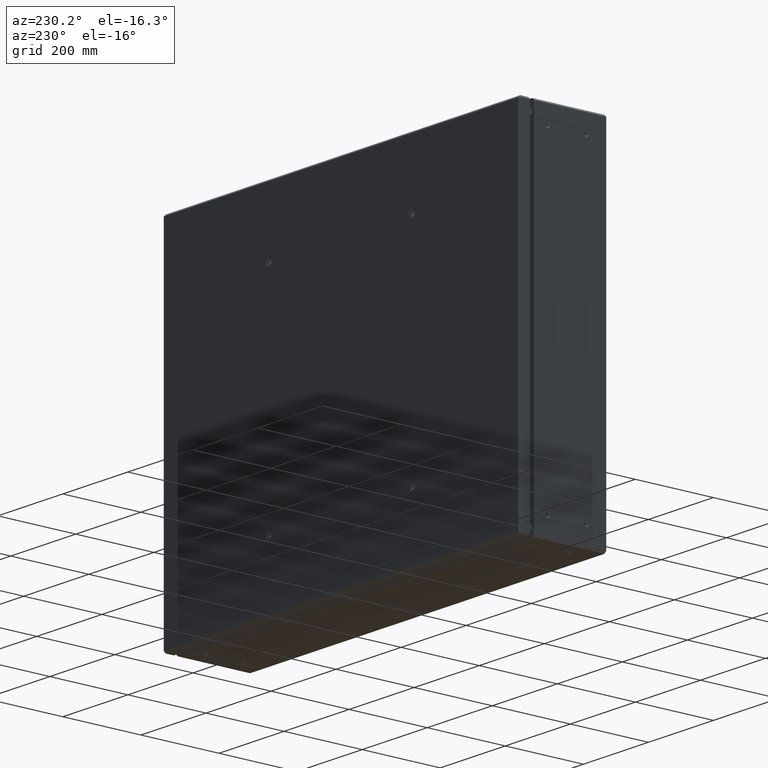
[diagram: clean part render]
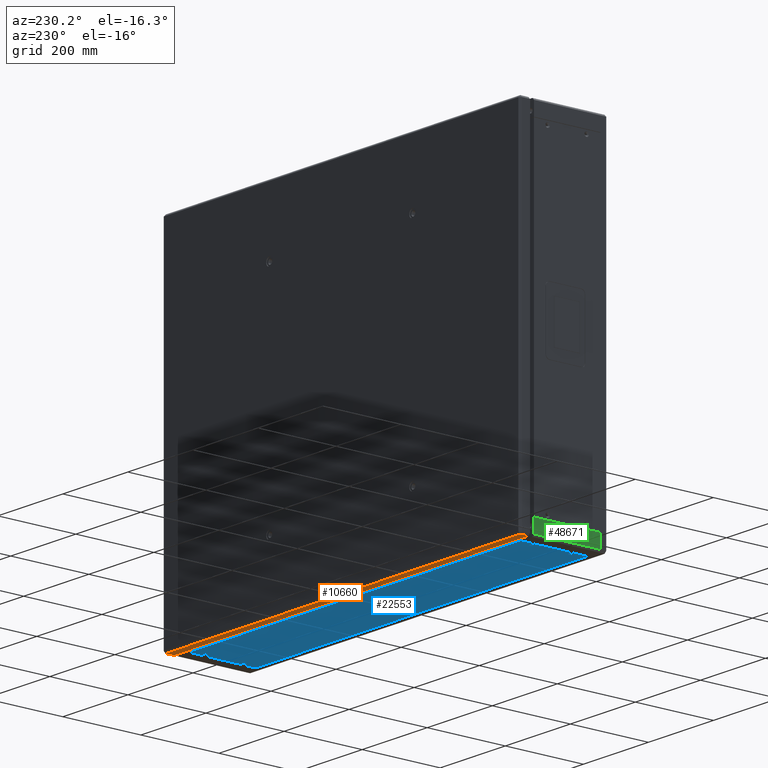
[diagram: same view with three faces highlighted in distinct colors, each labeled with its STEP entity id]
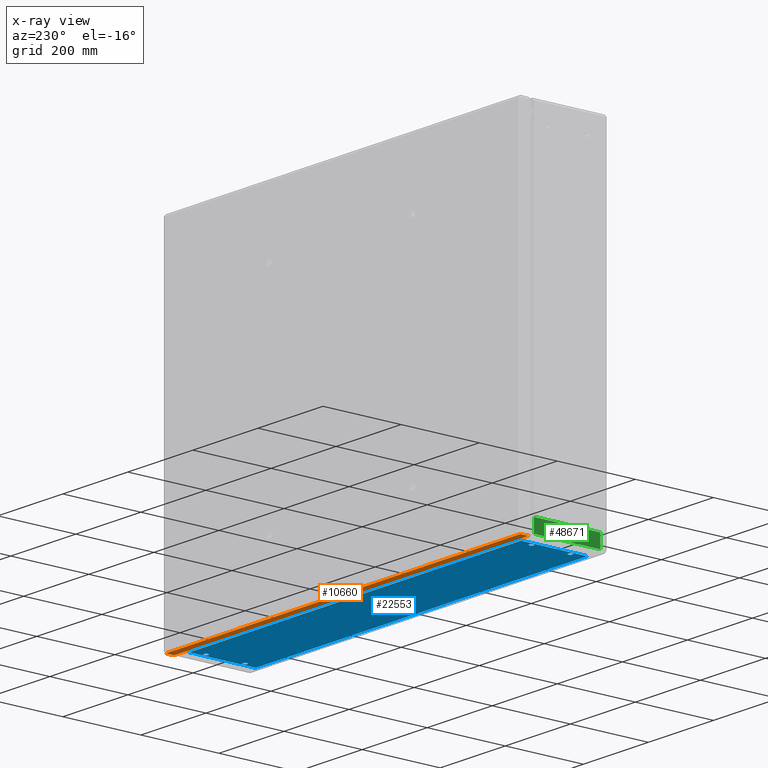
[diagram: x-ray of the same camera — body ghosted, the three highlighted faces saturated]
A machine part, auxiliary view with three faces highlighted in distinct colors.
The next image is the same camera in x-ray (body ghosted, the three faces saturated) — at least one of them is partly hidden behind the body in this view.
Their STEP definitions:

[orange] entity #10660 — the highlighted planar face has unit normal (0, 0, 1).
#851 = DIRECTION ( 'NONE',  ( 0.000000000000000000, 0.000000000000000000, 1.000000000000000000 ) ) ;
#909 = ORIENTED_EDGE ( 'NONE', *, *, #20365, .F. ) ;
#3034 = VERTEX_POINT ( 'NONE', #41634 ) ;
#4432 = DIRECTION ( 'NONE',  ( -1.000000000000000000, -0.000000000000000000, 0.000000000000000000 ) ) ;
#5817 = LINE ( 'NONE', #44222, #45188 ) ;
#6746 = DIRECTION ( 'NONE',  ( 1.000000000000000000, 0.000000000000000000, 0.000000000000000000 ) ) ;
#9162 = DIRECTION ( 'NONE',  ( -0.000000000000000000, -1.000000000000000000, 0.000000000000000000 ) ) ;
#10660 = ADVANCED_FACE ( 'NONE', ( #35410 ), #20057, .F. ) ;
#13269 = CARTESIAN_POINT ( 'NONE',  ( 386.6304755906584205, 280.9650746403643780, 399.4942352924385318 ) ) ;
#16322 = CARTESIAN_POINT ( 'NONE',  ( -703.3695244093422616, 280.9650746403643780, 399.4942352924385318 ) ) ;
#16780 = VECTOR ( 'NONE', #6746, 1000.000000000000000 ) ;
#17829 = AXIS2_PLACEMENT_3D ( 'NONE', #23639, #851, #40273 ) ;
#20057 = PLANE ( 'NONE',  #17829 ) ;
#20365 = EDGE_CURVE ( 'NONE', #21001, #40558, #21228, .T. ) ;
#21001 = VERTEX_POINT ( 'NONE', #16322 ) ;
#21228 = LINE ( 'NONE', #44276, #44436 ) ;
#22286 = ORIENTED_EDGE ( 'NONE', *, *, #46482, .F. ) ;
#22733 = ORIENTED_EDGE ( 'NONE', *, *, #29794, .T. ) ;
#23639 = CARTESIAN_POINT ( 'NONE',  ( -708.3695244093421479, 283.9650746403642643, 399.4942352924385318 ) ) ;
#23887 = LINE ( 'NONE', #43871, #39971 ) ;
#24064 = EDGE_CURVE ( 'NONE', #35659, #21001, #23887, .T. ) ;
#26467 = CARTESIAN_POINT ( 'NONE',  ( -708.3695244093421479, 259.9650746403642074, 399.4942352924385318 ) ) ;
#29794 = EDGE_CURVE ( 'NONE', #35659, #3034, #5817, .T. ) ;
#35410 = FACE_OUTER_BOUND ( 'NONE', #42917, .T. ) ;
#35659 = VERTEX_POINT ( 'NONE', #13269 ) ;
#39971 = VECTOR ( 'NONE', #4432, 1000.000000000000000 ) ;
#40273 = DIRECTION ( 'NONE',  ( 1.000000000000000000, 0.000000000000000000, -0.000000000000000000 ) ) ;
#40558 = VERTEX_POINT ( 'NONE', #48925 ) ;
#41634 = CARTESIAN_POINT ( 'NONE',  ( 386.6304755906580226, 259.9650746403642074, 399.4942352924384181 ) ) ;
#41830 = LINE ( 'NONE', #26467, #16780 ) ;
#42917 = EDGE_LOOP ( 'NONE', ( #909, #47412, #22733, #22286 ) ) ;
#43871 = CARTESIAN_POINT ( 'NONE',  ( -708.3695244093421479, 280.9650746403643780, 399.4942352924385318 ) ) ;
#44022 = DIRECTION ( 'NONE',  ( 0.000000000000000000, -1.000000000000000000, -0.000000000000000000 ) ) ;
#44222 = CARTESIAN_POINT ( 'NONE',  ( 386.6304755906580226, 283.9650746403642643, 399.4942352924385318 ) ) ;
#44276 = CARTESIAN_POINT ( 'NONE',  ( -703.3695244093422616, 283.9650746403642643, 399.4942352924385318 ) ) ;
#44436 = VECTOR ( 'NONE', #44022, 1000.000000000000000 ) ;
#45188 = VECTOR ( 'NONE', #9162, 1000.000000000000000 ) ;
#46482 = EDGE_CURVE ( 'NONE', #40558, #3034, #41830, .T. ) ;
#47412 = ORIENTED_EDGE ( 'NONE', *, *, #24064, .F. ) ;
#48925 = CARTESIAN_POINT ( 'NONE',  ( -703.3695244093422616, 259.9650746403642074, 399.4942352924385318 ) ) ;

[blue] entity #22553 — the highlighted planar face has unit normal (0, -0, 1).
#1046 = DIRECTION ( 'NONE',  ( 1.000000000000000000, -3.475729642449612760E-17, -4.926614671774133726E-15 ) ) ;
#1108 = VERTEX_POINT ( 'NONE', #6420 ) ;
#1319 = EDGE_CURVE ( 'NONE', #13725, #13725, #34905, .T. ) ;
#1429 = CARTESIAN_POINT ( 'NONE',  ( 351.1304755906595005, 79.96507464035518353, 399.5942352924366219 ) ) ;
#1884 = CARTESIAN_POINT ( 'NONE',  ( -663.9695244093585416, 114.9650746403553541, 399.5942352924247984 ) ) ;
#1976 = DIRECTION ( 'NONE',  ( 0.000000000000000000, -1.000000000000000000, 0.000000000000000000 ) ) ;
#3402 = DIRECTION ( 'NONE',  ( -1.000000000000000000, 0.000000000000000000, 0.000000000000000000 ) ) ;
#4786 = ORIENTED_EDGE ( 'NONE', *, *, #33220, .F. ) ;
#5290 = DIRECTION ( 'NONE',  ( -4.926614671774133726E-15, 2.439764660139173185E-16, -1.000000000000000000 ) ) ;
#5762 = FACE_BOUND ( 'NONE', #15363, .T. ) ;
#6185 = AXIS2_PLACEMENT_3D ( 'NONE', #46359, #47350, #23791 ) ;
#6420 = CARTESIAN_POINT ( 'NONE',  ( 351.1304755906595574, 249.9650746403551977, 399.5942352924366787 ) ) ;
#7200 = DIRECTION ( 'NONE',  ( -1.000000000000000000, 3.475729642449612760E-17, 4.926614671774133726E-15 ) ) ;
#8484 = VECTOR ( 'NONE', #7200, 1000.000000000000000 ) ;
#9595 = ORIENTED_EDGE ( 'NONE', *, *, #26666, .F. ) ;
#9872 = ORIENTED_EDGE ( 'NONE', *, *, #15897, .F. ) ;
#11016 = DIRECTION ( 'NONE',  ( -1.000000000000000000, 0.000000000000000000, 0.000000000000000000 ) ) ;
#11193 = ORIENTED_EDGE ( 'NONE', *, *, #35389, .F. ) ;
#11539 = CARTESIAN_POINT ( 'NONE',  ( 351.1304755906595574, 249.9650746403551977, 399.5942352924366787 ) ) ;
#11948 = VERTEX_POINT ( 'NONE', #43436 ) ;
#12066 = LINE ( 'NONE', #39963, #37075 ) ;
#12207 = VERTEX_POINT ( 'NONE', #30177 ) ;
#12844 = CARTESIAN_POINT ( 'NONE',  ( 341.6304755906594437, 109.3650746403371556, 399.5942352924198531 ) ) ;
#13394 = EDGE_LOOP ( 'NONE', ( #4786 ) ) ;
#13457 = PLANE ( 'NONE',  #28511 ) ;
#13631 = LINE ( 'NONE', #20527, #34213 ) ;
#13725 = VERTEX_POINT ( 'NONE', #44437 ) ;
#15363 = EDGE_LOOP ( 'NONE', ( #9595 ) ) ;
#15594 = EDGE_LOOP ( 'NONE', ( #42838 ) ) ;
#15897 = EDGE_CURVE ( 'NONE', #11948, #11948, #42174, .T. ) ;
#16571 = CARTESIAN_POINT ( 'NONE',  ( 341.6304755906594437, 114.9650746403551835, 399.5942352924198531 ) ) ;
#17044 = DIRECTION ( 'NONE',  ( 4.926614671774133726E-15, -1.665334536937735057E-16, 1.000000000000000000 ) ) ;
#19981 = VECTOR ( 'NONE', #33871, 1000.000000000000000 ) ;
#20527 = CARTESIAN_POINT ( 'NONE',  ( 351.1304755906595005, 79.96507464035518353, 399.5942352924366219 ) ) ;
#20876 = FACE_OUTER_BOUND ( 'NONE', #44164, .T. ) ;
#21088 = VERTEX_POINT ( 'NONE', #1884 ) ;
#21346 = CIRCLE ( 'NONE', #32793, 5.600000000018257040 ) ;
#22553 = ADVANCED_FACE ( 'NONE', ( #20876, #5762, #40078, #36500, #48528 ), #13457, .F. ) ;
#22780 = CARTESIAN_POINT ( 'NONE',  ( -658.3695244093402152, 214.9650746403553399, 399.5942352924247984 ) ) ;
#23791 = DIRECTION ( 'NONE',  ( 0.000000000000000000, -1.000000000000000000, 0.000000000000000000 ) ) ;
#26666 = EDGE_CURVE ( 'NONE', #21088, #21088, #21346, .T. ) ;
#26949 = EDGE_CURVE ( 'NONE', #28773, #1108, #13631, .T. ) ;
#27289 = ORIENTED_EDGE ( 'NONE', *, *, #45485, .F. ) ;
#27568 = AXIS2_PLACEMENT_3D ( 'NONE', #22780, #38667, #11016 ) ;
#28511 = AXIS2_PLACEMENT_3D ( 'NONE', #1429, #17044, #33164 ) ;
#28773 = VERTEX_POINT ( 'NONE', #36744 ) ;
#30177 = CARTESIAN_POINT ( 'NONE',  ( -667.8695244093403289, 79.96507464035522617, 399.5942352924416241 ) ) ;
#30273 = DIRECTION ( 'NONE',  ( -4.926614671774133726E-15, 1.665334536937735057E-16, -1.000000000000000000 ) ) ;
#30381 = CARTESIAN_POINT ( 'NONE',  ( -667.8695244093403289, 249.9650746403552262, 399.5942352924416241 ) ) ;
#32793 = AXIS2_PLACEMENT_3D ( 'NONE', #50248, #30273, #3402 ) ;
#33125 = CARTESIAN_POINT ( 'NONE',  ( -667.8695244093403289, 79.96507464035522617, 399.5942352924416241 ) ) ;
#33164 = DIRECTION ( 'NONE',  ( 1.000000000000000000, -3.475729642449612760E-17, -4.926614671774133726E-15 ) ) ;
#33220 = EDGE_CURVE ( 'NONE', #47922, #47922, #48912, .T. ) ;
#33871 = DIRECTION ( 'NONE',  ( -3.475729642449694728E-17, -1.000000000000000000, -1.665334536937733332E-16 ) ) ;
#34213 = VECTOR ( 'NONE', #36664, 1000.000000000000000 ) ;
#34543 = EDGE_LOOP ( 'NONE', ( #9872 ) ) ;
#34905 = CIRCLE ( 'NONE', #27568, 5.600000000018257040 ) ;
#35389 = EDGE_CURVE ( 'NONE', #1108, #36951, #38940, .T. ) ;
#36325 = EDGE_CURVE ( 'NONE', #12207, #28773, #12066, .T. ) ;
#36500 = FACE_BOUND ( 'NONE', #13394, .T. ) ;
#36664 = DIRECTION ( 'NONE',  ( 3.475729642449694728E-17, 1.000000000000000000, 1.665334536937733332E-16 ) ) ;
#36744 = CARTESIAN_POINT ( 'NONE',  ( 351.1304755906595005, 79.96507464035518353, 399.5942352924366219 ) ) ;
#36951 = VERTEX_POINT ( 'NONE', #30381 ) ;
#37075 = VECTOR ( 'NONE', #1046, 1000.000000000000000 ) ;
#38667 = DIRECTION ( 'NONE',  ( -4.926614671774133726E-15, 1.665334536937735057E-16, -1.000000000000000000 ) ) ;
#38940 = LINE ( 'NONE', #11539, #8484 ) ;
#39963 = CARTESIAN_POINT ( 'NONE',  ( 351.1304755906595005, 79.96507464035518353, 399.5942352924366219 ) ) ;
#40078 = FACE_BOUND ( 'NONE', #15594, .T. ) ;
#40716 = AXIS2_PLACEMENT_3D ( 'NONE', #16571, #5290, #1976 ) ;
#41564 = LINE ( 'NONE', #33125, #19981 ) ;
#42121 = ORIENTED_EDGE ( 'NONE', *, *, #26949, .F. ) ;
#42174 = CIRCLE ( 'NONE', #6185, 5.600000000018034996 ) ;
#42838 = ORIENTED_EDGE ( 'NONE', *, *, #1319, .F. ) ;
#43436 = CARTESIAN_POINT ( 'NONE',  ( 341.6304755906594437, 209.3650746403371556, 399.5942352924198531 ) ) ;
#44164 = EDGE_LOOP ( 'NONE', ( #48326, #27289, #11193, #42121 ) ) ;
#44437 = CARTESIAN_POINT ( 'NONE',  ( -663.9695244093585416, 214.9650746403553399, 399.5942352924247984 ) ) ;
#45485 = EDGE_CURVE ( 'NONE', #36951, #12207, #41564, .T. ) ;
#46359 = CARTESIAN_POINT ( 'NONE',  ( 341.6304755906594437, 214.9650746403551977, 399.5942352924198531 ) ) ;
#47350 = DIRECTION ( 'NONE',  ( -4.926614671774133726E-15, 2.439764660139172692E-16, -1.000000000000000000 ) ) ;
#47922 = VERTEX_POINT ( 'NONE', #12844 ) ;
#48326 = ORIENTED_EDGE ( 'NONE', *, *, #36325, .F. ) ;
#48528 = FACE_BOUND ( 'NONE', #34543, .T. ) ;
#48912 = CIRCLE ( 'NONE', #40716, 5.600000000018034996 ) ;
#50248 = CARTESIAN_POINT ( 'NONE',  ( -658.3695244093402152, 114.9650746403553541, 399.5942352924247984 ) ) ;

[green] entity #48671 — the highlighted planar face has unit normal (1, -0, -0).
#310 = CARTESIAN_POINT ( 'NONE',  ( -708.3695244093422616, 249.9650746403551693, 399.4942352924385318 ) ) ;
#1664 = LINE ( 'NONE', #44931, #13358 ) ;
#1868 = CARTESIAN_POINT ( 'NONE',  ( -708.3695244093422616, 79.96507464035515511, 399.4942352924385318 ) ) ;
#2723 = DIRECTION ( 'NONE',  ( -4.440892098500627148E-16, -7.284029950019471467E-17, -1.000000000000000000 ) ) ;
#4120 = CARTESIAN_POINT ( 'NONE',  ( -708.3695244093422616, 249.9650746403551977, 404.4942352924385887 ) ) ;
#5965 = DIRECTION ( 'NONE',  ( 3.079614069927587124E-17, 1.000000000000000000, -7.284029950019472699E-17 ) ) ;
#6184 = VERTEX_POINT ( 'NONE', #6569 ) ;
#6396 = CARTESIAN_POINT ( 'NONE',  ( -708.3695244093422616, 79.96507464035515511, 439.2942352924385432 ) ) ;
#6569 = CARTESIAN_POINT ( 'NONE',  ( -708.3695244093422616, 79.96507464035515511, 404.4942352924385887 ) ) ;
#6817 = LINE ( 'NONE', #45744, #45080 ) ;
#10057 = ORIENTED_EDGE ( 'NONE', *, *, #47902, .F. ) ;
#10064 = FACE_OUTER_BOUND ( 'NONE', #39229, .T. ) ;
#10228 = ORIENTED_EDGE ( 'NONE', *, *, #29910, .F. ) ;
#13358 = VECTOR ( 'NONE', #36987, 1000.000000000000000 ) ;
#14156 = PLANE ( 'NONE',  #27515 ) ;
#14288 = VERTEX_POINT ( 'NONE', #4120 ) ;
#17619 = CARTESIAN_POINT ( 'NONE',  ( -708.3695244093422616, 79.96507464035515511, 439.2942352924385432 ) ) ;
#22007 = DIRECTION ( 'NONE',  ( -3.079614069927587124E-17, -1.000000000000000000, 7.284029950019472699E-17 ) ) ;
#26858 = EDGE_CURVE ( 'NONE', #39247, #14288, #27463, .T. ) ;
#26995 = ORIENTED_EDGE ( 'NONE', *, *, #26858, .T. ) ;
#27463 = LINE ( 'NONE', #310, #31972 ) ;
#27515 = AXIS2_PLACEMENT_3D ( 'NONE', #1868, #36937, #5965 ) ;
#27925 = CARTESIAN_POINT ( 'NONE',  ( -708.3695244093422616, 249.9650746403551693, 439.2942352924385432 ) ) ;
#29878 = VERTEX_POINT ( 'NONE', #17619 ) ;
#29910 = EDGE_CURVE ( 'NONE', #29878, #6184, #6817, .T. ) ;
#30785 = DIRECTION ( 'NONE',  ( -4.440892098500627148E-16, -7.284029950019471467E-17, -1.000000000000000000 ) ) ;
#31972 = VECTOR ( 'NONE', #30785, 1000.000000000000000 ) ;
#32377 = VECTOR ( 'NONE', #22007, 1000.000000000000000 ) ;
#34752 = EDGE_CURVE ( 'NONE', #14288, #6184, #1664, .T. ) ;
#36937 = DIRECTION ( 'NONE',  ( 1.000000000000000000, -3.079614069927590205E-17, -4.440892098500627148E-16 ) ) ;
#36987 = DIRECTION ( 'NONE',  ( -3.079614069927587124E-17, -1.000000000000000000, 7.284029950019472699E-17 ) ) ;
#37383 = LINE ( 'NONE', #6396, #32377 ) ;
#39229 = EDGE_LOOP ( 'NONE', ( #42358, #10228, #10057, #26995 ) ) ;
#39247 = VERTEX_POINT ( 'NONE', #27925 ) ;
#42358 = ORIENTED_EDGE ( 'NONE', *, *, #34752, .T. ) ;
#44931 = CARTESIAN_POINT ( 'NONE',  ( -708.3695244093422616, 79.96507464035515511, 404.4942352924385887 ) ) ;
#45080 = VECTOR ( 'NONE', #2723, 1000.000000000000000 ) ;
#45744 = CARTESIAN_POINT ( 'NONE',  ( -708.3695244093422616, 79.96507464035515511, 399.4942352924385318 ) ) ;
#47902 = EDGE_CURVE ( 'NONE', #39247, #29878, #37383, .T. ) ;
#48671 = ADVANCED_FACE ( 'NONE', ( #10064 ), #14156, .F. ) ;